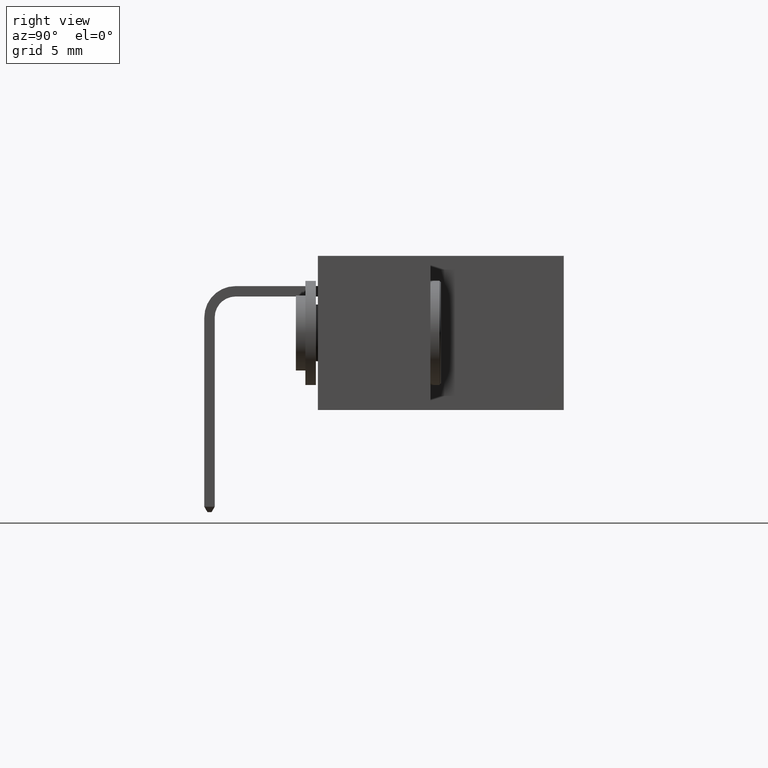
[diagram: clean part render]
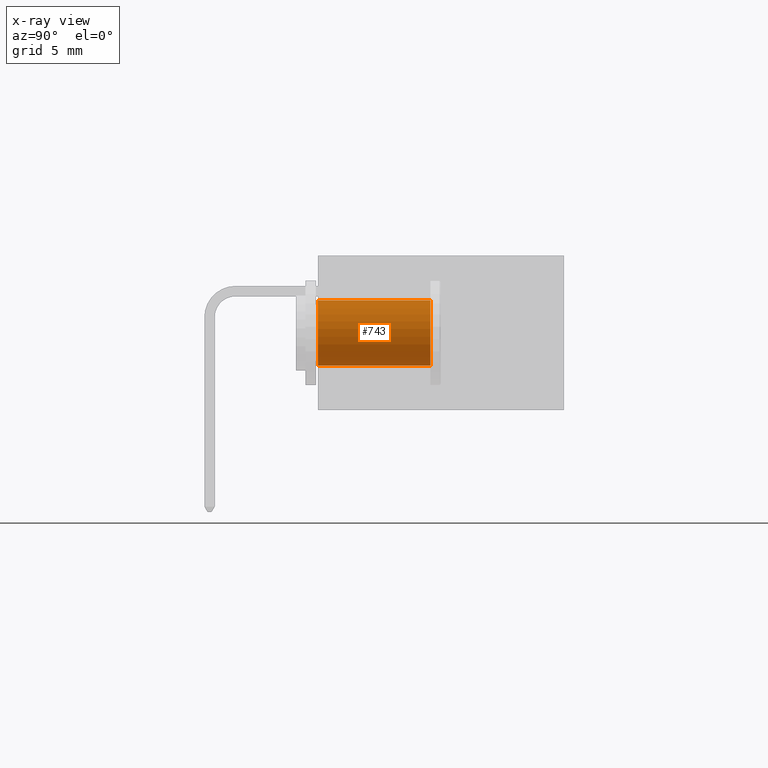
[diagram: x-ray — body ghosted, one internal face saturated and labeled with its STEP entity id]
A machine part, right view, then the same camera in x-ray: the body is ghosted and one INTERNAL B-rep face — a face not visible from any outside direction — is saturated and labeled: STEP entity #743.
In plain terms, the highlighted cylindrical surface (edge-blend (fillet) strip) has radius 1.9812 mm, axis along (0, 1, 0).
Its self-contained STEP definition (entity closure, byte-faithful):
#94 = CYLINDRICAL_SURFACE ( 'NONE', #8069, 0.07800000000000001400 ) ;
#348 = ORIENTED_EDGE ( 'NONE', *, *, #8287, .F. ) ;
#363 = ORIENTED_EDGE ( 'NONE', *, *, #8785, .T. ) ;
#558 = CIRCLE ( 'NONE', #6068, 0.07800000000000001400 ) ;
#578 = VERTEX_POINT ( 'NONE', #1321 ) ;
#743 = ADVANCED_FACE ( 'NONE', ( #3890 ), #94, .F. ) ;
#1245 = LINE ( 'NONE', #1540, #2941 ) ;
#1321 = CARTESIAN_POINT ( 'NONE',  ( 0.1390000000000000400, 0.0000000000000000000, -0.2630000000000000100 ) ) ;
#1372 = DIRECTION ( 'NONE',  ( -0.0000000000000000000, 1.000000000000000000, -0.0000000000000000000 ) ) ;
#1540 = CARTESIAN_POINT ( 'NONE',  ( 0.1390000000000000400, 0.0000000000000000000, -0.2630000000000000100 ) ) ;
#1605 = VERTEX_POINT ( 'NONE', #6046 ) ;
#1850 = VECTOR ( 'NONE', #4245, 39.37007874015748100 ) ;
#2081 = LINE ( 'NONE', #4729, #1850 ) ;
#2415 = CARTESIAN_POINT ( 'NONE',  ( 0.1390000000000000100, 0.2699999999999999600, -0.1070000000000000000 ) ) ;
#2656 = ORIENTED_EDGE ( 'NONE', *, *, #5935, .F. ) ;
#2941 = VECTOR ( 'NONE', #1372, 39.37007874015748100 ) ;
#3757 = EDGE_CURVE ( 'NONE', #8555, #5019, #2081, .T. ) ;
#3890 = FACE_OUTER_BOUND ( 'NONE', #5337, .T. ) ;
#4015 = DIRECTION ( 'NONE',  ( 0.0000000000000000000, 0.0000000000000000000, 1.000000000000000000 ) ) ;
#4245 = DIRECTION ( 'NONE',  ( -0.0000000000000000000, 1.000000000000000000, -0.0000000000000000000 ) ) ;
#4576 = DIRECTION ( 'NONE',  ( -0.0000000000000000000, 1.000000000000000000, -0.0000000000000000000 ) ) ;
#4660 = DIRECTION ( 'NONE',  ( 0.0000000000000000000, 0.0000000000000000000, 1.000000000000000000 ) ) ;
#4729 = CARTESIAN_POINT ( 'NONE',  ( 0.1390000000000000100, 0.0000000000000000000, -0.1070000000000000000 ) ) ;
#5019 = VERTEX_POINT ( 'NONE', #2415 ) ;
#5212 = DIRECTION ( 'NONE',  ( 0.0000000000000000000, 0.0000000000000000000, 1.000000000000000000 ) ) ;
#5223 = DIRECTION ( 'NONE',  ( 0.0000000000000000000, 1.000000000000000000, 0.0000000000000000000 ) ) ;
#5238 = CARTESIAN_POINT ( 'NONE',  ( 0.1390000000000000100, 0.0000000000000000000, -0.1850000000000000000 ) ) ;
#5337 = EDGE_LOOP ( 'NONE', ( #348, #2656, #7588, #363 ) ) ;
#5935 = EDGE_CURVE ( 'NONE', #8555, #578, #6595, .T. ) ;
#6046 = CARTESIAN_POINT ( 'NONE',  ( 0.1390000000000000400, 0.2699999999999999600, -0.2630000000000000100 ) ) ;
#6068 = AXIS2_PLACEMENT_3D ( 'NONE', #8299, #8260, #4015 ) ;
#6595 = CIRCLE ( 'NONE', #7619, 0.07800000000000001400 ) ;
#7460 = CARTESIAN_POINT ( 'NONE',  ( 0.1390000000000000100, 0.0000000000000000000, -0.1850000000000000000 ) ) ;
#7588 = ORIENTED_EDGE ( 'NONE', *, *, #3757, .T. ) ;
#7619 = AXIS2_PLACEMENT_3D ( 'NONE', #5238, #5223, #5212 ) ;
#8069 = AXIS2_PLACEMENT_3D ( 'NONE', #7460, #4576, #4660 ) ;
#8260 = DIRECTION ( 'NONE',  ( 0.0000000000000000000, 1.000000000000000000, 0.0000000000000000000 ) ) ;
#8287 = EDGE_CURVE ( 'NONE', #578, #1605, #1245, .T. ) ;
#8299 = CARTESIAN_POINT ( 'NONE',  ( 0.1390000000000000100, 0.2699999999999999600, -0.1850000000000000000 ) ) ;
#8473 = CARTESIAN_POINT ( 'NONE',  ( 0.1390000000000000100, 0.0000000000000000000, -0.1070000000000000000 ) ) ;
#8555 = VERTEX_POINT ( 'NONE', #8473 ) ;
#8785 = EDGE_CURVE ( 'NONE', #5019, #1605, #558, .T. ) ;